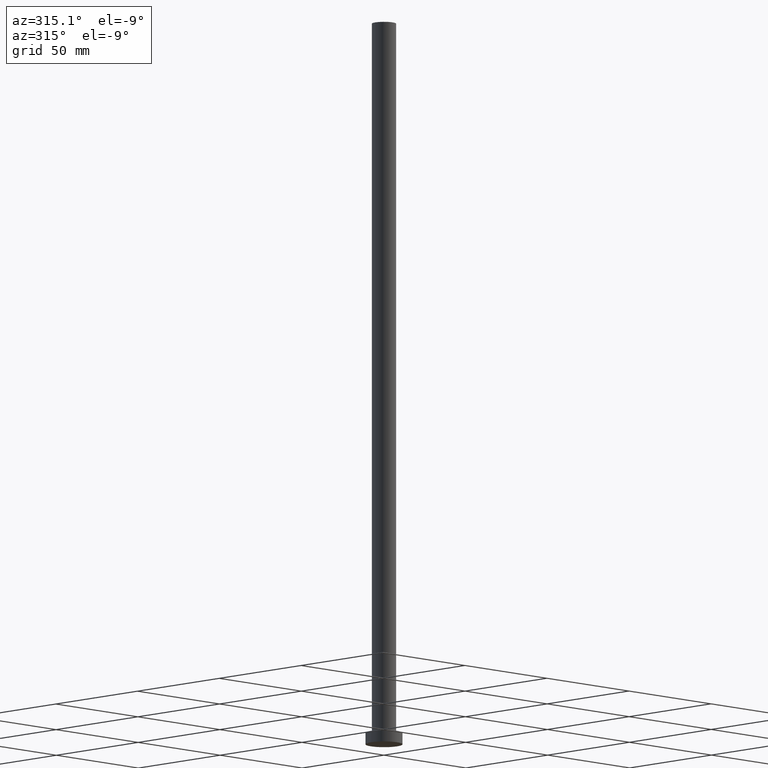
[diagram: clean part render]
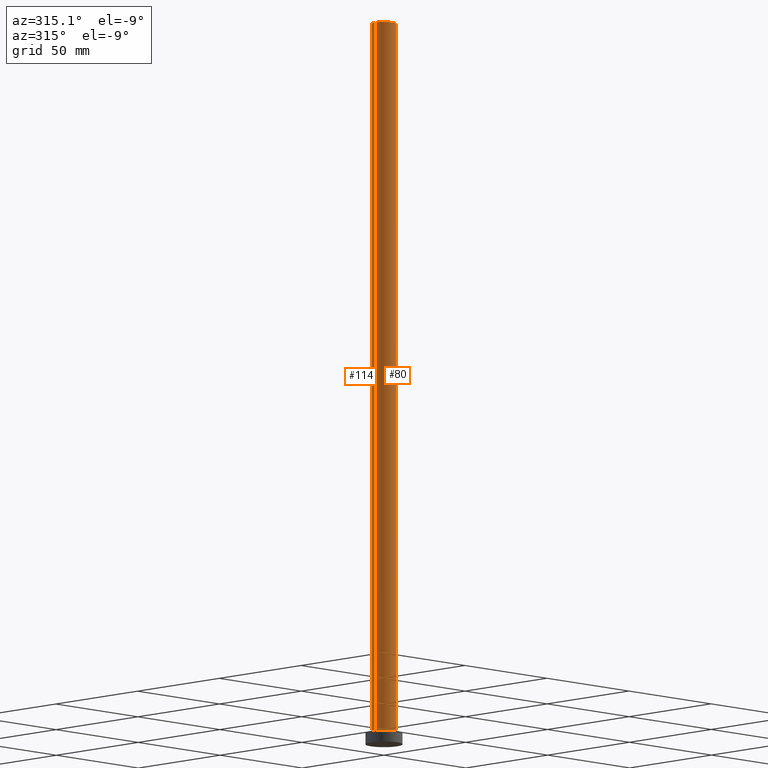
[diagram: same view with one multi-face feature highlighted, each face labeled with its STEP entity id]
A machine part, auxiliary view. The highlighted faces form ONE feature: a constant-radius fillet chain: 2 tangent blend faces with common blend radius 5.25 mm. The faces share edges in the B-rep.
Their STEP definitions:
[1] entity #80 (Cylinder):
#2 = AXIS2_PLACEMENT_3D ( 'NONE', #102, #136, #163 ) ;
#5 = VECTOR ( 'NONE', #226, 1000.000000000000000 ) ;
#8 = CARTESIAN_POINT ( 'NONE',  ( 5.250000000000000888, 6.429395695523605139E-16, 5.000000000000000000 ) ) ;
#24 = EDGE_LOOP ( 'NONE', ( #197, #177, #156, #157 ) ) ;
#29 = LINE ( 'NONE', #32, #227 ) ;
#31 = DIRECTION ( 'NONE',  ( 1.000000000000000000, 0.000000000000000000, 0.000000000000000000 ) ) ;
#32 = CARTESIAN_POINT ( 'NONE',  ( -5.250000000000000888, 0.000000000000000000, 315.0000000000000000 ) ) ;
#37 = VERTEX_POINT ( 'NONE', #235 ) ;
#40 = VERTEX_POINT ( 'NONE', #83 ) ;
#56 = EDGE_CURVE ( 'NONE', #79, #178, #64, .T. ) ;
#63 = CARTESIAN_POINT ( 'NONE',  ( 0.000000000000000000, 0.000000000000000000, 5.000000000000000000 ) ) ;
#64 = CIRCLE ( 'NONE', #203, 5.250000000000000888 ) ;
#73 = CARTESIAN_POINT ( 'NONE',  ( 5.250000000000000888, 6.429395695523605139E-16, 315.0000000000000000 ) ) ;
#79 = VERTEX_POINT ( 'NONE', #241 ) ;
#80 = ADVANCED_FACE ( 'NONE', ( #195 ), #219, .T. ) ;
#83 = CARTESIAN_POINT ( 'NONE',  ( 5.250000000000000888, 6.429395695523605139E-16, 315.0000000000000000 ) ) ;
#102 = CARTESIAN_POINT ( 'NONE',  ( 0.000000000000000000, 0.000000000000000000, 315.0000000000000000 ) ) ;
#107 = LINE ( 'NONE', #73, #5 ) ;
#134 = CIRCLE ( 'NONE', #231, 5.250000000000000888 ) ;
#136 = DIRECTION ( 'NONE',  ( -0.000000000000000000, -0.000000000000000000, -1.000000000000000000 ) ) ;
#137 = DIRECTION ( 'NONE',  ( 1.000000000000000000, 0.000000000000000000, 0.000000000000000000 ) ) ;
#149 = DIRECTION ( 'NONE',  ( 0.000000000000000000, 0.000000000000000000, 1.000000000000000000 ) ) ;
#156 = ORIENTED_EDGE ( 'NONE', *, *, #174, .T. ) ;
#157 = ORIENTED_EDGE ( 'NONE', *, *, #56, .T. ) ;
#163 = DIRECTION ( 'NONE',  ( -1.000000000000000000, 0.000000000000000000, 0.000000000000000000 ) ) ;
#171 = EDGE_CURVE ( 'NONE', #37, #40, #134, .T. ) ;
#174 = EDGE_CURVE ( 'NONE', #37, #79, #29, .T. ) ;
#177 = ORIENTED_EDGE ( 'NONE', *, *, #171, .F. ) ;
#178 = VERTEX_POINT ( 'NONE', #8 ) ;
#186 = DIRECTION ( 'NONE',  ( -0.000000000000000000, -0.000000000000000000, -1.000000000000000000 ) ) ;
#190 = EDGE_CURVE ( 'NONE', #40, #178, #107, .T. ) ;
#194 = DIRECTION ( 'NONE',  ( 0.000000000000000000, 0.000000000000000000, 1.000000000000000000 ) ) ;
#195 = FACE_OUTER_BOUND ( 'NONE', #24, .T. ) ;
#197 = ORIENTED_EDGE ( 'NONE', *, *, #190, .F. ) ;
#203 = AXIS2_PLACEMENT_3D ( 'NONE', #63, #194, #137 ) ;
#219 = CYLINDRICAL_SURFACE ( 'NONE', #2, 5.250000000000000888 ) ;
#222 = CARTESIAN_POINT ( 'NONE',  ( 0.000000000000000000, 0.000000000000000000, 315.0000000000000000 ) ) ;
#226 = DIRECTION ( 'NONE',  ( -0.000000000000000000, -0.000000000000000000, -1.000000000000000000 ) ) ;
#227 = VECTOR ( 'NONE', #186, 1000.000000000000000 ) ;
#231 = AXIS2_PLACEMENT_3D ( 'NONE', #222, #149, #31 ) ;
#235 = CARTESIAN_POINT ( 'NONE',  ( -5.250000000000000888, 0.000000000000000000, 315.0000000000000000 ) ) ;
#241 = CARTESIAN_POINT ( 'NONE',  ( -5.250000000000000888, 0.000000000000000000, 5.000000000000000000 ) ) ;
[2] entity #114 (Cylinder):
#5 = VECTOR ( 'NONE', #226, 1000.000000000000000 ) ;
#8 = CARTESIAN_POINT ( 'NONE',  ( 5.250000000000000888, 6.429395695523605139E-16, 5.000000000000000000 ) ) ;
#15 = ORIENTED_EDGE ( 'NONE', *, *, #249, .T. ) ;
#16 = EDGE_LOOP ( 'NONE', ( #135, #248, #15, #175 ) ) ;
#29 = LINE ( 'NONE', #32, #227 ) ;
#32 = CARTESIAN_POINT ( 'NONE',  ( -5.250000000000000888, 0.000000000000000000, 315.0000000000000000 ) ) ;
#37 = VERTEX_POINT ( 'NONE', #235 ) ;
#40 = VERTEX_POINT ( 'NONE', #83 ) ;
#55 = EDGE_CURVE ( 'NONE', #40, #37, #185, .T. ) ;
#61 = DIRECTION ( 'NONE',  ( -1.000000000000000000, 0.000000000000000000, 0.000000000000000000 ) ) ;
#71 = CIRCLE ( 'NONE', #209, 5.250000000000000888 ) ;
#73 = CARTESIAN_POINT ( 'NONE',  ( 5.250000000000000888, 6.429395695523605139E-16, 315.0000000000000000 ) ) ;
#79 = VERTEX_POINT ( 'NONE', #241 ) ;
#83 = CARTESIAN_POINT ( 'NONE',  ( 5.250000000000000888, 6.429395695523605139E-16, 315.0000000000000000 ) ) ;
#89 = DIRECTION ( 'NONE',  ( 0.000000000000000000, 0.000000000000000000, 1.000000000000000000 ) ) ;
#104 = CARTESIAN_POINT ( 'NONE',  ( 0.000000000000000000, 0.000000000000000000, 315.0000000000000000 ) ) ;
#107 = LINE ( 'NONE', #73, #5 ) ;
#114 = ADVANCED_FACE ( 'NONE', ( #196 ), #238, .T. ) ;
#118 = DIRECTION ( 'NONE',  ( 1.000000000000000000, 0.000000000000000000, 0.000000000000000000 ) ) ;
#135 = ORIENTED_EDGE ( 'NONE', *, *, #55, .F. ) ;
#165 = CARTESIAN_POINT ( 'NONE',  ( 0.000000000000000000, 0.000000000000000000, 315.0000000000000000 ) ) ;
#174 = EDGE_CURVE ( 'NONE', #37, #79, #29, .T. ) ;
#175 = ORIENTED_EDGE ( 'NONE', *, *, #174, .F. ) ;
#176 = AXIS2_PLACEMENT_3D ( 'NONE', #165, #182, #118 ) ;
#178 = VERTEX_POINT ( 'NONE', #8 ) ;
#182 = DIRECTION ( 'NONE',  ( 0.000000000000000000, 0.000000000000000000, 1.000000000000000000 ) ) ;
#185 = CIRCLE ( 'NONE', #176, 5.250000000000000888 ) ;
#186 = DIRECTION ( 'NONE',  ( -0.000000000000000000, -0.000000000000000000, -1.000000000000000000 ) ) ;
#190 = EDGE_CURVE ( 'NONE', #40, #178, #107, .T. ) ;
#196 = FACE_OUTER_BOUND ( 'NONE', #16, .T. ) ;
#199 = DIRECTION ( 'NONE',  ( 1.000000000000000000, 0.000000000000000000, 0.000000000000000000 ) ) ;
#201 = CARTESIAN_POINT ( 'NONE',  ( 0.000000000000000000, 0.000000000000000000, 5.000000000000000000 ) ) ;
#209 = AXIS2_PLACEMENT_3D ( 'NONE', #201, #89, #199 ) ;
#226 = DIRECTION ( 'NONE',  ( -0.000000000000000000, -0.000000000000000000, -1.000000000000000000 ) ) ;
#227 = VECTOR ( 'NONE', #186, 1000.000000000000000 ) ;
#232 = AXIS2_PLACEMENT_3D ( 'NONE', #104, #233, #61 ) ;
#233 = DIRECTION ( 'NONE',  ( -0.000000000000000000, -0.000000000000000000, -1.000000000000000000 ) ) ;
#235 = CARTESIAN_POINT ( 'NONE',  ( -5.250000000000000888, 0.000000000000000000, 315.0000000000000000 ) ) ;
#238 = CYLINDRICAL_SURFACE ( 'NONE', #232, 5.250000000000000888 ) ;
#241 = CARTESIAN_POINT ( 'NONE',  ( -5.250000000000000888, 0.000000000000000000, 5.000000000000000000 ) ) ;
#248 = ORIENTED_EDGE ( 'NONE', *, *, #190, .T. ) ;
#249 = EDGE_CURVE ( 'NONE', #178, #79, #71, .T. ) ;